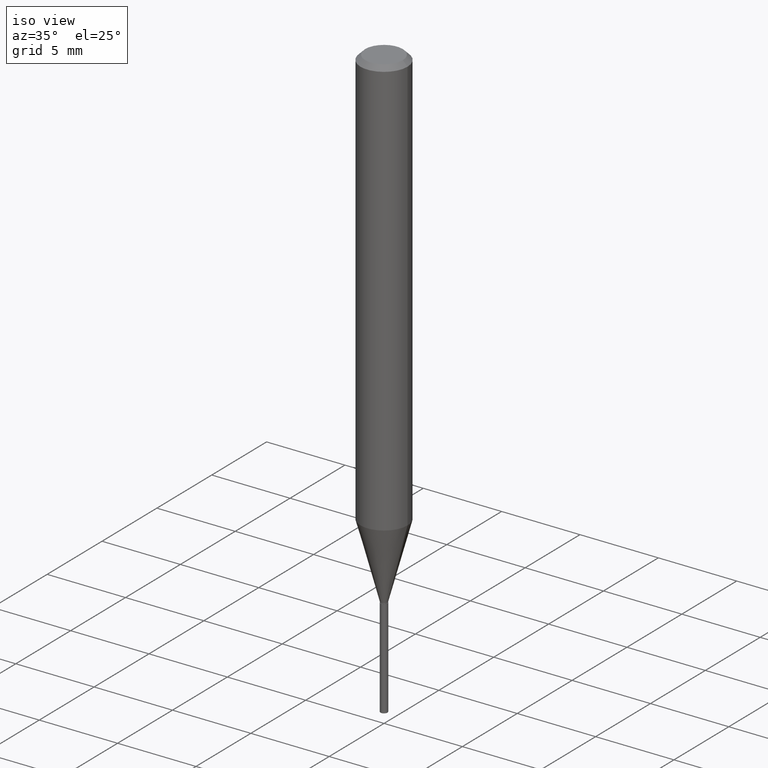
[diagram: clean part render]
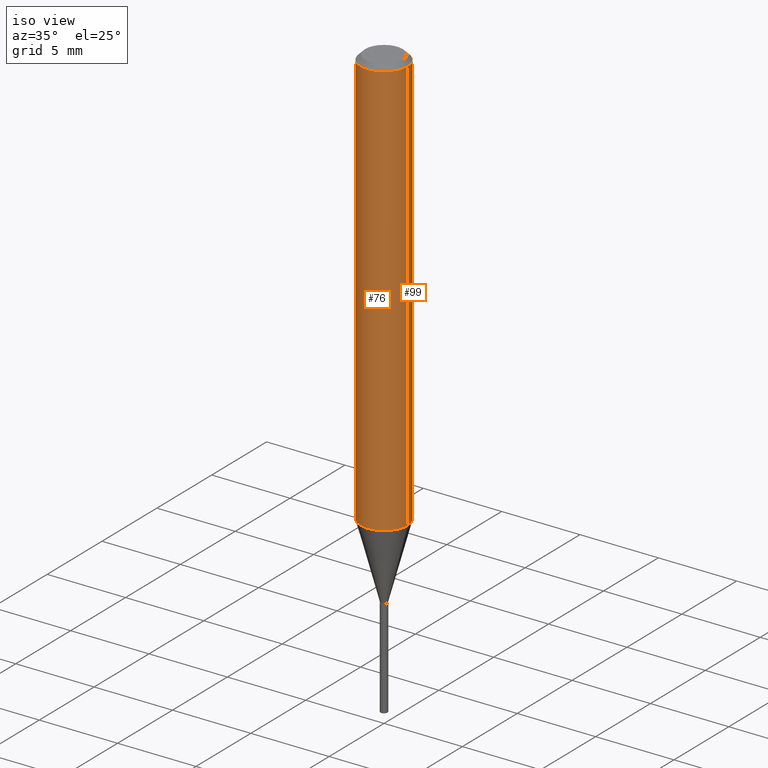
[diagram: same view with one multi-face feature highlighted, each face labeled with its STEP entity id]
A machine part, iso view. The highlighted faces form ONE feature: a constant-radius fillet chain: 2 tangent blend faces with common blend radius 1.4999 mm. The faces share edges in the B-rep.
Their STEP definitions:
[1] entity #99 (Cylinder):
#6 = LINE ( 'NONE', #241, #278 ) ;
#17 = AXIS2_PLACEMENT_3D ( 'NONE', #289, #18, #62 ) ;
#18 = DIRECTION ( 'NONE',  ( -2.445468806185136597E-29, 3.491481338843145583E-15, 1.000000000000000000 ) ) ;
#21 = EDGE_CURVE ( 'NONE', #162, #383, #212, .T. ) ;
#35 = DIRECTION ( 'NONE',  ( 1.000000000000000000, -6.982962677686266711E-15, 4.876176775795936353E-29 ) ) ;
#36 = EDGE_CURVE ( 'NONE', #172, #383, #321, .T. ) ;
#40 = CARTESIAN_POINT ( 'NONE',  ( 2.576068185695256609E-29, -3.677942640361607017E-15, -1.053404639298528345 ) ) ;
#50 = EDGE_LOOP ( 'NONE', ( #452, #461, #143, #102 ) ) ;
#62 = DIRECTION ( 'NONE',  ( 1.000000000000000000, -6.982962677686266711E-15, 0.000000000000000000 ) ) ;
#99 = ADVANCED_FACE ( 'NONE', ( #339 ), #227, .T. ) ;
#102 = ORIENTED_EDGE ( 'NONE', *, *, #431, .F. ) ;
#113 = CARTESIAN_POINT ( 'NONE',  ( 0.05904999999999999832, -4.535783407291118600E-16, -0.01181000000000007218 ) ) ;
#118 = CARTESIAN_POINT ( 'NONE',  ( -0.05905000000000013016, -3.258367154895266735E-15, -1.053404639298528345 ) ) ;
#143 = ORIENTED_EDGE ( 'NONE', *, *, #21, .F. ) ;
#162 = VERTEX_POINT ( 'NONE', #113 ) ;
#172 = VERTEX_POINT ( 'NONE', #118 ) ;
#174 = VECTOR ( 'NONE', #287, 39.37007874015748143 ) ;
#186 = DIRECTION ( 'NONE',  ( -2.445468806185136597E-29, 3.491481338843145583E-15, 1.000000000000000000 ) ) ;
#196 = DIRECTION ( 'NONE',  ( 1.000000000000000000, -6.982962677686265133E-15, 0.000000000000000000 ) ) ;
#212 = CIRCLE ( 'NONE', #17, 0.05904999999999999832 ) ;
#221 = AXIS2_PLACEMENT_3D ( 'NONE', #40, #273, #196 ) ;
#227 = CYLINDRICAL_SURFACE ( 'NONE', #350, 0.05905000000000006771 ) ;
#241 = CARTESIAN_POINT ( 'NONE',  ( 0.05905000000000006771, -4.123439461173745257E-16, 2.879382386107503723E-30 ) ) ;
#245 = CARTESIAN_POINT ( 'NONE',  ( 0.05905000000000013016, -4.090286586478981149E-15, -1.053404639298528345 ) ) ;
#273 = DIRECTION ( 'NONE',  ( -2.445468806185136597E-29, 3.491481338843145583E-15, 1.000000000000000000 ) ) ;
#278 = VECTOR ( 'NONE', #385, 39.37007874015748143 ) ;
#287 = DIRECTION ( 'NONE',  ( -2.445468806185136877E-29, 3.491481338843145188E-15, 1.000000000000000000 ) ) ;
#289 = CARTESIAN_POINT ( 'NONE',  ( 2.888098660104664204E-31, -4.123439461173780263E-17, -0.01181000000000007218 ) ) ;
#316 = CARTESIAN_POINT ( 'NONE',  ( -0.05904999999999999832, -1.440013032020331894E-15, -0.01181000000000007218 ) ) ;
#321 = LINE ( 'NONE', #469, #174 ) ;
#339 = FACE_OUTER_BOUND ( 'NONE', #50, .T. ) ;
#350 = AXIS2_PLACEMENT_3D ( 'NONE', #481, #186, #35 ) ;
#361 = VERTEX_POINT ( 'NONE', #245 ) ;
#383 = VERTEX_POINT ( 'NONE', #316 ) ;
#385 = DIRECTION ( 'NONE',  ( -2.445468806185136877E-29, 3.491481338843145188E-15, 1.000000000000000000 ) ) ;
#428 = CIRCLE ( 'NONE', #221, 0.05905000000000013016 ) ;
#431 = EDGE_CURVE ( 'NONE', #361, #162, #6, .T. ) ;
#452 = ORIENTED_EDGE ( 'NONE', *, *, #486, .T. ) ;
#461 = ORIENTED_EDGE ( 'NONE', *, *, #36, .T. ) ;
#469 = CARTESIAN_POINT ( 'NONE',  ( -0.05905000000000006771, 4.195754854663396409E-16, -2.904631170795525045E-30 ) ) ;
#481 = CARTESIAN_POINT ( 'NONE',  ( 0.000000000000000000, 0.000000000000000000, 0.000000000000000000 ) ) ;
#486 = EDGE_CURVE ( 'NONE', #361, #172, #428, .T. ) ;
[2] entity #76 (Cylinder):
#6 = LINE ( 'NONE', #241, #278 ) ;
#32 = AXIS2_PLACEMENT_3D ( 'NONE', #371, #264, #482 ) ;
#36 = EDGE_CURVE ( 'NONE', #172, #383, #321, .T. ) ;
#52 = AXIS2_PLACEMENT_3D ( 'NONE', #282, #424, #191 ) ;
#76 = ADVANCED_FACE ( 'NONE', ( #430 ), #477, .T. ) ;
#83 = ORIENTED_EDGE ( 'NONE', *, *, #431, .T. ) ;
#92 = EDGE_CURVE ( 'NONE', #383, #162, #442, .T. ) ;
#106 = AXIS2_PLACEMENT_3D ( 'NONE', #207, #354, #318 ) ;
#113 = CARTESIAN_POINT ( 'NONE',  ( 0.05904999999999999832, -4.535783407291118600E-16, -0.01181000000000007218 ) ) ;
#118 = CARTESIAN_POINT ( 'NONE',  ( -0.05905000000000013016, -3.258367154895266735E-15, -1.053404639298528345 ) ) ;
#162 = VERTEX_POINT ( 'NONE', #113 ) ;
#172 = VERTEX_POINT ( 'NONE', #118 ) ;
#174 = VECTOR ( 'NONE', #287, 39.37007874015748143 ) ;
#191 = DIRECTION ( 'NONE',  ( 1.000000000000000000, -6.982962677686266711E-15, 4.876176775795936353E-29 ) ) ;
#207 = CARTESIAN_POINT ( 'NONE',  ( 2.576068185695256609E-29, -3.677942640361607017E-15, -1.053404639298528345 ) ) ;
#241 = CARTESIAN_POINT ( 'NONE',  ( 0.05905000000000006771, -4.123439461173745257E-16, 2.879382386107503723E-30 ) ) ;
#245 = CARTESIAN_POINT ( 'NONE',  ( 0.05905000000000013016, -4.090286586478981149E-15, -1.053404639298528345 ) ) ;
#249 = ORIENTED_EDGE ( 'NONE', *, *, #36, .F. ) ;
#264 = DIRECTION ( 'NONE',  ( -2.445468806185136597E-29, 3.491481338843145583E-15, 1.000000000000000000 ) ) ;
#278 = VECTOR ( 'NONE', #385, 39.37007874015748143 ) ;
#282 = CARTESIAN_POINT ( 'NONE',  ( 0.000000000000000000, 0.000000000000000000, 0.000000000000000000 ) ) ;
#287 = DIRECTION ( 'NONE',  ( -2.445468806185136877E-29, 3.491481338843145188E-15, 1.000000000000000000 ) ) ;
#316 = CARTESIAN_POINT ( 'NONE',  ( -0.05904999999999999832, -1.440013032020331894E-15, -0.01181000000000007218 ) ) ;
#318 = DIRECTION ( 'NONE',  ( 1.000000000000000000, -6.982962677686265133E-15, 0.000000000000000000 ) ) ;
#321 = LINE ( 'NONE', #469, #174 ) ;
#354 = DIRECTION ( 'NONE',  ( -2.445468806185136597E-29, 3.491481338843145583E-15, 1.000000000000000000 ) ) ;
#358 = ORIENTED_EDGE ( 'NONE', *, *, #92, .F. ) ;
#361 = VERTEX_POINT ( 'NONE', #245 ) ;
#371 = CARTESIAN_POINT ( 'NONE',  ( 2.888098660104664204E-31, -4.123439461173780263E-17, -0.01181000000000007218 ) ) ;
#383 = VERTEX_POINT ( 'NONE', #316 ) ;
#385 = DIRECTION ( 'NONE',  ( -2.445468806185136877E-29, 3.491481338843145188E-15, 1.000000000000000000 ) ) ;
#419 = ORIENTED_EDGE ( 'NONE', *, *, #454, .T. ) ;
#424 = DIRECTION ( 'NONE',  ( -2.445468806185136597E-29, 3.491481338843145583E-15, 1.000000000000000000 ) ) ;
#430 = FACE_OUTER_BOUND ( 'NONE', #475, .T. ) ;
#431 = EDGE_CURVE ( 'NONE', #361, #162, #6, .T. ) ;
#442 = CIRCLE ( 'NONE', #32, 0.05904999999999999832 ) ;
#454 = EDGE_CURVE ( 'NONE', #172, #361, #478, .T. ) ;
#469 = CARTESIAN_POINT ( 'NONE',  ( -0.05905000000000006771, 4.195754854663396409E-16, -2.904631170795525045E-30 ) ) ;
#475 = EDGE_LOOP ( 'NONE', ( #249, #419, #83, #358 ) ) ;
#477 = CYLINDRICAL_SURFACE ( 'NONE', #52, 0.05905000000000006771 ) ;
#478 = CIRCLE ( 'NONE', #106, 0.05905000000000013016 ) ;
#482 = DIRECTION ( 'NONE',  ( 1.000000000000000000, -6.982962677686266711E-15, 0.000000000000000000 ) ) ;